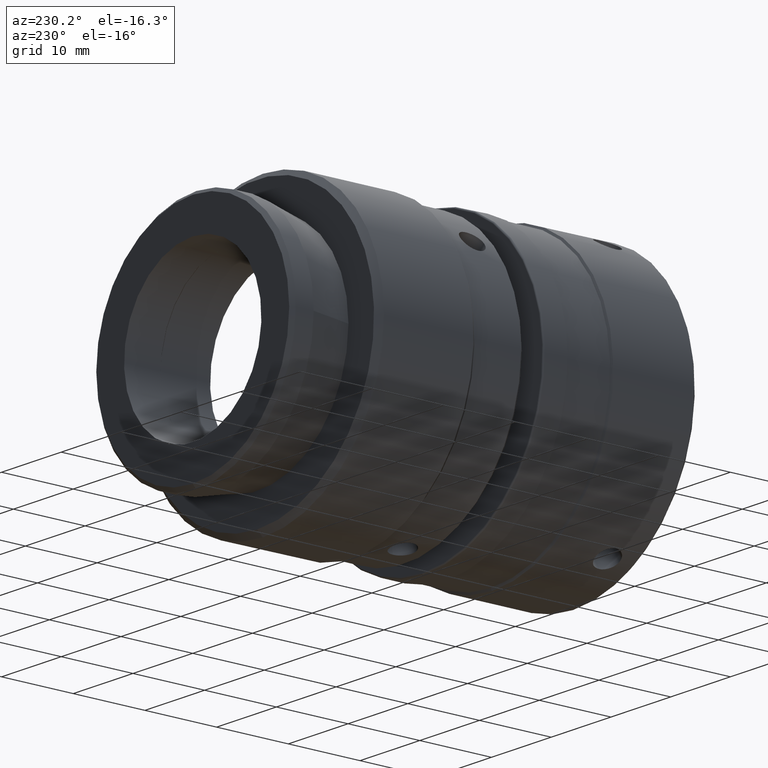
[diagram: clean part render]
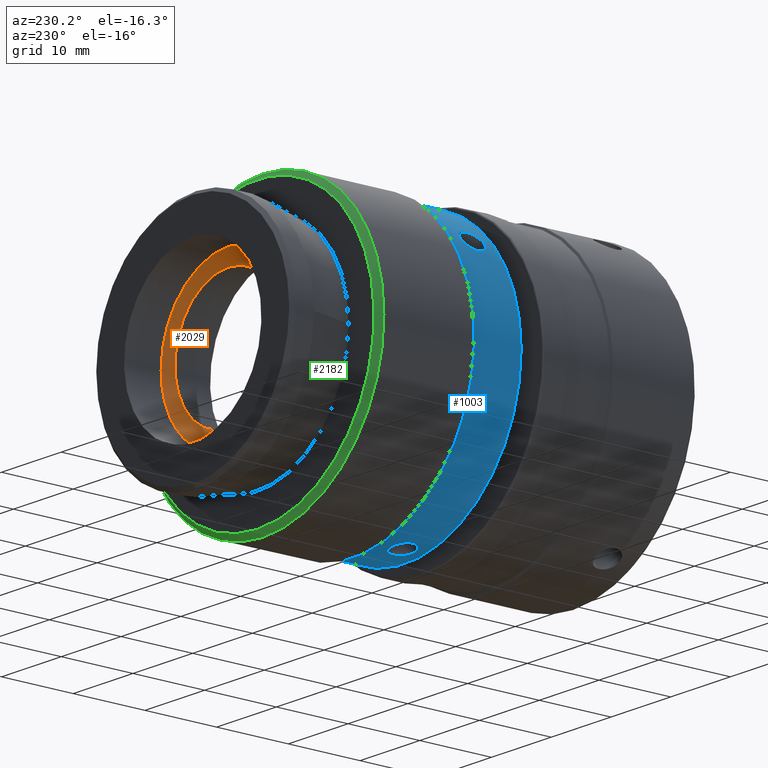
[diagram: same view with three faces highlighted in distinct colors, each labeled with its STEP entity id]
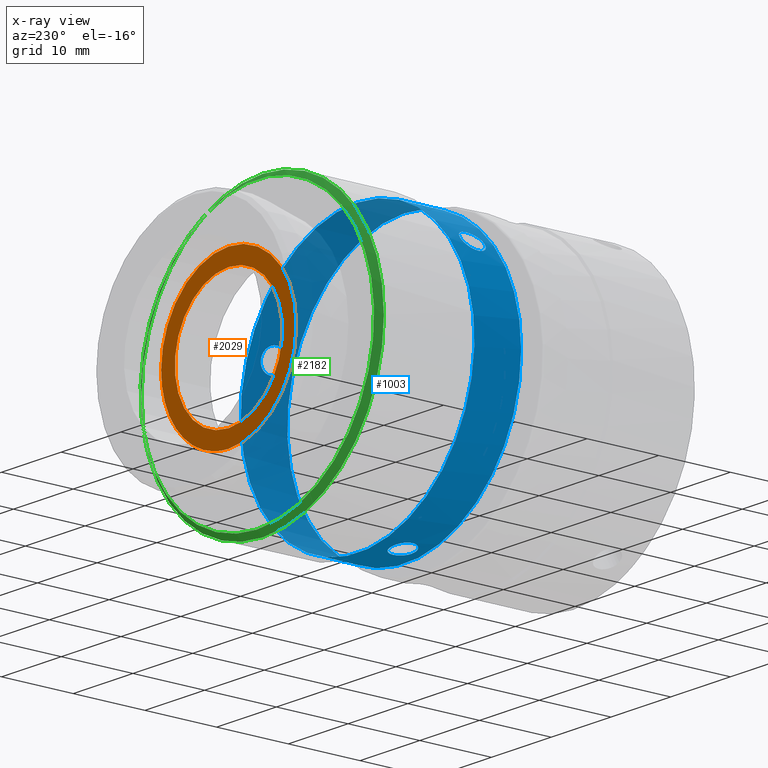
[diagram: x-ray of the same camera — body ghosted, the three highlighted faces saturated]
A machine part, auxiliary view with three faces highlighted in distinct colors.
The next image is the same camera in x-ray (body ghosted, the three faces saturated) — at least one of them is partly hidden behind the body in this view.
Their STEP definitions:

[orange] entity #2029 — the highlighted planar face has unit normal (0, 1, 0).
#8 = VERTEX_POINT ( 'NONE', #95 ) ;
#10 = CARTESIAN_POINT ( 'NONE',  ( 15.43656250745909908, 24.73982633731133873, 11.24461176566492604 ) ) ;
#20 = CARTESIAN_POINT ( 'NONE',  ( 15.89222740330257366, 24.73982575273277362, 11.18817186150956822 ) ) ;
#29 = CARTESIAN_POINT ( 'NONE',  ( 22.66277533252997145, 24.73982647979999072, 7.603798976327655446 ) ) ;
#38 = CARTESIAN_POINT ( 'NONE',  ( 16.66068784959392701, 24.73982625650781131, 11.05152816889913758 ) ) ;
#49 = CARTESIAN_POINT ( 'NONE',  ( 25.31248931209880837, 24.73982649842291437, 2.554554391560033721 ) ) ;
#61 = CARTESIAN_POINT ( 'NONE',  ( 24.80446110320795583, 24.73982635273180719, 4.172073375280472618 ) ) ;
#73 = CARTESIAN_POINT ( 'NONE',  ( 24.87778807499134714, 24.73982625123004908, 3.984189678480833052 ) ) ;
#84 = AXIS2_PLACEMENT_3D ( 'NONE', #1769, #129, #2104 ) ;
#86 = CARTESIAN_POINT ( 'NONE',  ( 25.56485751250502503, 24.73982633453590552, 0.9258153019100744396 ) ) ;
#95 = CARTESIAN_POINT ( 'NONE',  ( 14.30252365930601144, 24.73982649842291437, -11.30000000000014282 ) ) ;
#98 = CARTESIAN_POINT ( 'NONE',  ( 25.04129458621358140, 24.73982641354781364, 3.517658641241204531 ) ) ;
#129 = DIRECTION ( 'NONE',  ( 0.000000000000000000, 1.000000000000000000, 0.000000000000000000 ) ) ;
#136 = CARTESIAN_POINT ( 'NONE',  ( 14.30252365930601144, 24.73982649842291437, -11.30000000000014282 ) ) ;
#186 = CARTESIAN_POINT ( 'NONE',  ( 16.43857005108903735, 24.73982605009276980, 11.09679440633403225 ) ) ;
#194 = CARTESIAN_POINT ( 'NONE',  ( 15.78471545297173151, 24.73982593898453786, 11.20293575171610811 ) ) ;
#195 = CARTESIAN_POINT ( 'NONE',  ( 14.30252365930601144, 24.73982649842272608, -6.938893903907228378E-15 ) ) ;
#202 = CARTESIAN_POINT ( 'NONE',  ( 22.13583878337880506, 24.73982649858260885, 8.146674637561394761 ) ) ;
#203 = CARTESIAN_POINT ( 'NONE',  ( 14.30252365930601322, 24.73982649842292858, 11.30000000000012861 ) ) ;
#214 = CARTESIAN_POINT ( 'NONE',  ( 22.27699953592750148, 24.73982649825307334, 8.008572791078513831 ) ) ;
#224 = CARTESIAN_POINT ( 'NONE',  ( 17.45882097091061524, 24.73982649842255555, 10.85024368211522905 ) ) ;
#235 = CARTESIAN_POINT ( 'NONE',  ( 24.24814591926731566, 24.73982649828499447, 5.364278980198169400 ) ) ;
#248 = CARTESIAN_POINT ( 'NONE',  ( 25.55496207180673451, 24.73982628515610926, 1.041764182322033383 ) ) ;
#261 = CARTESIAN_POINT ( 'NONE',  ( 23.84904399031152877, 24.73982647161124504, 6.049884894832243454 ) ) ;
#276 = CARTESIAN_POINT ( 'NONE',  ( 25.01653570530337589, 24.73982638909519594, 3.592786163317036152 ) ) ;
#289 = CARTESIAN_POINT ( 'NONE',  ( 25.25132828674059127, 24.73982649842243475, 2.795299124750642683 ) ) ;
#309 = ORIENTED_EDGE ( 'NONE', *, *, #554, .F. ) ;
#331 = PLANE ( 'NONE',  #84 ) ;
#373 = CARTESIAN_POINT ( 'NONE',  ( 17.46398318389906024, 24.73982649842292147, 10.84874080561577081 ) ) ;
#381 = CARTESIAN_POINT ( 'NONE',  ( 19.65903039958678988, 24.73982648901837678, 9.955599275815663063 ) ) ;
#391 = CARTESIAN_POINT ( 'NONE',  ( 20.60046960930543136, 24.73982649623708596, 9.384923631277306555 ) ) ;
#393 = AXIS2_PLACEMENT_3D ( 'NONE', #1899, #1754, #1349 ) ;
#401 = CARTESIAN_POINT ( 'NONE',  ( 17.23301208603414736, 24.73982649535045297, 10.91364718770783782 ) ) ;
#411 = CARTESIAN_POINT ( 'NONE',  ( 24.62283682930298312, 24.73982649499798114, 4.603807390793942744 ) ) ;
#424 = CARTESIAN_POINT ( 'NONE',  ( 25.52058901265315072, 24.73982618078655804, 1.361874651517072543 ) ) ;
#435 = CARTESIAN_POINT ( 'NONE',  ( 24.83623377566108203, 24.73982628479641477, 4.091158762421513551 ) ) ;
#448 = CARTESIAN_POINT ( 'NONE',  ( 25.57772624636080039, 24.73982640266100930, 0.7512455757870917239 ) ) ;
#460 = CARTESIAN_POINT ( 'NONE',  ( 24.01385283860499342, 24.73982648531904971, 5.778661754143657348 ) ) ;
#473 = CARTESIAN_POINT ( 'NONE',  ( 24.17647935121426528, 24.73982640932231547, -5.690986944637735689 ) ) ;
#510 = CARTESIAN_POINT ( 'NONE',  ( 25.60145925940861744, 24.73982649801799738, 0.1626541732773733595 ) ) ;
#521 = CARTESIAN_POINT ( 'NONE',  ( 19.99351060394375068, 24.73982640932232613, -9.873955691908246735 ) ) ;
#532 = CARTESIAN_POINT ( 'NONE',  ( 22.48197780695519654, 24.73982649040454262, 7.796833700702873848 ) ) ;
#543 = CARTESIAN_POINT ( 'NONE',  ( 14.56983544864613833, 24.73982649842292147, 11.30000000000017124 ) ) ;
#551 = CARTESIAN_POINT ( 'NONE',  ( 15.88602826452499883, 24.73982576442218217, 11.18904777080813773 ) ) ;
#554 = EDGE_CURVE ( 'NONE', #8, #1544, #1394, .T. ) ;
#561 = CARTESIAN_POINT ( 'NONE',  ( 17.39919976499056631, 24.73982649842121617, 10.86744960414276306 ) ) ;
#565 = CIRCLE ( 'NONE', #1343, 9.000000000000003553 ) ;
#572 = CARTESIAN_POINT ( 'NONE',  ( 21.06557929304308274, 24.73982649841985548, 9.052691274149674783 ) ) ;
#585 = CARTESIAN_POINT ( 'NONE',  ( 25.05220384190183935, 24.73982642372432039, 3.484024447663098822 ) ) ;
#596 = CARTESIAN_POINT ( 'NONE',  ( 25.51235467062779705, 24.73982622923172059, 1.427304826695639406 ) ) ;
#607 = CARTESIAN_POINT ( 'NONE',  ( 25.36310653517425706, 24.73982650144919404, 2.325799758128411110 ) ) ;
#617 = CARTESIAN_POINT ( 'NONE',  ( 25.57539818428938716, 24.73982639020785967, 0.7860911373188042006 ) ) ;
#627 = CARTESIAN_POINT ( 'NONE',  ( 24.83816161568354985, 24.73982628010366369, 4.086198075589852152 ) ) ;
#664 = CARTESIAN_POINT ( 'NONE',  ( 15.78169020037121406, 24.73982649842289661, -11.30006981317217196 ) ) ;
#688 = CARTESIAN_POINT ( 'NONE',  ( 17.26030250965635560, 24.73982646415344533, -11.00601198814047343 ) ) ;
#693 = FACE_OUTER_BOUND ( 'NONE', #1225, .T. ) ;
#710 = CARTESIAN_POINT ( 'NONE',  ( 17.45091481278725354, 24.73982649842202974, 10.85254160496657505 ) ) ;
#730 = CARTESIAN_POINT ( 'NONE',  ( 14.30252365930601322, 24.73982649842292858, 11.30000000000012861 ) ) ;
#741 = CARTESIAN_POINT ( 'NONE',  ( 17.46214391856551629, 24.73982649842277581, 10.84927627548337625 ) ) ;
#747 = EDGE_CURVE ( 'NONE', #1544, #8, #1588, .T. ) ;
#752 = CARTESIAN_POINT ( 'NONE',  ( 25.50909290415925668, 24.73982624701932664, 1.452704299834645552 ) ) ;
#763 = CARTESIAN_POINT ( 'NONE',  ( 25.50242180783090973, 24.73982628032549869, 1.503484450997223831 ) ) ;
#774 = CARTESIAN_POINT ( 'NONE',  ( 24.37999346562787295, 24.73982649842290371, 5.117165813305788014 ) ) ;
#785 = CARTESIAN_POINT ( 'NONE',  ( 24.83172734541766502, 24.73982629548826750, 4.102730570263803500 ) ) ;
#796 = VERTEX_POINT ( 'NONE', #1163 ) ;
#797 = CARTESIAN_POINT ( 'NONE',  ( 24.09435055503713485, 24.73982649186304883, 5.641892013765988700 ) ) ;
#846 = EDGE_LOOP ( 'NONE', ( #1738 ) ) ;
#860 = CARTESIAN_POINT ( 'NONE',  ( 25.60248988734903719, 24.73982649842223935, 0.02984892813554363908 ) ) ;
#884 = CARTESIAN_POINT ( 'NONE',  ( 15.89978396712965747, 24.73982573834500087, 11.18710068502373645 ) ) ;
#892 = CARTESIAN_POINT ( 'NONE',  ( 21.02312489755459879, 24.73982649838119130, 9.084294293317036306 ) ) ;
#903 = CARTESIAN_POINT ( 'NONE',  ( 22.44881292679032470, 24.73982649197345651, 7.831446963037473452 ) ) ;
#912 = CARTESIAN_POINT ( 'NONE',  ( 22.55462114213883495, 24.73982648637831971, 7.719926187264654516 ) ) ;
#913 = DIRECTION ( 'NONE',  ( -0.000000000000000000, -1.000000000000000000, -0.000000000000000000 ) ) ;
#922 = CARTESIAN_POINT ( 'NONE',  ( 21.07265334062374507, 24.73982649842291437, 9.047403669910126567 ) ) ;
#933 = CARTESIAN_POINT ( 'NONE',  ( 25.42833060921264732, 24.73982645856595752, 1.980669495032635563 ) ) ;
#946 = CARTESIAN_POINT ( 'NONE',  ( 24.84055747796483971, 24.73982627418883951, 4.080025980781556427 ) ) ;
#958 = CARTESIAN_POINT ( 'NONE',  ( 25.11691256338449918, 24.73982648023369180, 3.281507481746103405 ) ) ;
#970 = CARTESIAN_POINT ( 'NONE',  ( 25.57926084667334266, 24.73982641085449075, 0.7277144286990917532 ) ) ;
#983 = CARTESIAN_POINT ( 'NONE',  ( 25.60251160432324724, 24.73982649842242054, 0.01674943380799585532 ) ) ;
#995 = CARTESIAN_POINT ( 'NONE',  ( 25.58011096122330841, 24.73982641538271210, 0.7143228513359259901 ) ) ;
#1004 = ORIENTED_EDGE ( 'NONE', *, *, #747, .F. ) ;
#1008 = CARTESIAN_POINT ( 'NONE',  ( 25.60215760889557757, 24.73982649840300851, 0.09429025195811316373 ) ) ;
#1060 = CARTESIAN_POINT ( 'NONE',  ( 15.94582808983721911, 24.73982564996591549, 11.18055602329076059 ) ) ;
#1070 = CARTESIAN_POINT ( 'NONE',  ( 18.75013335389173008, 24.73982648901837322, 10.41004779866319474 ) ) ;
#1091 = CARTESIAN_POINT ( 'NONE',  ( 20.96347775129590829, 24.73982649826054825, 9.128254143992988290 ) ) ;
#1101 = CARTESIAN_POINT ( 'NONE',  ( 20.84344476992916029, 24.73982649780871412, 9.215165749477588264 ) ) ;
#1111 = CARTESIAN_POINT ( 'NONE',  ( 23.11514644808272934, 24.73982645062640628, 7.085898433461387036 ) ) ;
#1124 = CARTESIAN_POINT ( 'NONE',  ( 25.15584794901239363, 24.73982649084861762, 3.147965351215344931 ) ) ;
#1137 = CARTESIAN_POINT ( 'NONE',  ( 25.25284937569556121, 24.73982649842270476, 2.789330407366241715 ) ) ;
#1150 = CARTESIAN_POINT ( 'NONE',  ( 25.51511137359810277, 24.73982621336495313, 1.405528954381747075 ) ) ;
#1163 = CARTESIAN_POINT ( 'NONE',  ( 14.30252365930601144, 24.73982649842272608, -9.000000000000008882 ) ) ;
#1165 = CARTESIAN_POINT ( 'NONE',  ( 24.82268194889444501, 24.73982631586149239, 4.125861643194472350 ) ) ;
#1225 = EDGE_LOOP ( 'NONE', ( #1004, #309 ) ) ;
#1239 = CARTESIAN_POINT ( 'NONE',  ( 15.89635999588403337, 24.73982574489372510, 11.18758678352760150 ) ) ;
#1248 = CARTESIAN_POINT ( 'NONE',  ( 15.23691867106234454, 24.73982641910645341, 11.26227838157938699 ) ) ;
#1268 = CARTESIAN_POINT ( 'NONE',  ( 17.43449171984709167, 24.73982649842210080, 10.85729887291132556 ) ) ;
#1279 = CARTESIAN_POINT ( 'NONE',  ( 15.66879640043715050, 24.73982610366870105, 11.21785036948148040 ) ) ;
#1289 = CARTESIAN_POINT ( 'NONE',  ( 24.18487215416454816, 24.73982649663990330, 5.480395244482239470 ) ) ;
#1299 = CARTESIAN_POINT ( 'NONE',  ( 25.51465419302388682, 24.73982621604592325, 1.409158548518351539 ) ) ;
#1310 = CARTESIAN_POINT ( 'NONE',  ( 25.51396710409241919, 24.73982622004606924, 1.414602776363463210 ) ) ;
#1323 = CARTESIAN_POINT ( 'NONE',  ( 24.76749993894060609, 24.73982641225277135, 4.264293244347570067 ) ) ;
#1335 = CARTESIAN_POINT ( 'NONE',  ( 25.23189992883168742, 24.73982649841162029, 2.870419137416751365 ) ) ;
#1343 = AXIS2_PLACEMENT_3D ( 'NONE', #195, #913, #1639 ) ;
#1349 = DIRECTION ( 'NONE',  ( 1.000000000000000000, 0.000000000000000000, 0.000000000000000000 ) ) ;
#1394 = CIRCLE ( 'NONE', #393, 11.30000000000018368 ) ;
#1413 = CARTESIAN_POINT ( 'NONE',  ( 21.04860820867497395, 24.73982649840788639, 9.065346793673064951 ) ) ;
#1423 = CARTESIAN_POINT ( 'NONE',  ( 16.23167133409898355, 24.73982583872221852, 11.13483051753798492 ) ) ;
#1432 = CARTESIAN_POINT ( 'NONE',  ( 17.46434468614305047, 24.73982649842288595, 10.84863522156404514 ) ) ;
#1441 = CARTESIAN_POINT ( 'NONE',  ( 15.87156186458818574, 24.73982579121706848, 11.19107960442615735 ) ) ;
#1450 = CARTESIAN_POINT ( 'NONE',  ( 15.84262214595687190, 24.73982584291545095, 11.19509544453015337 ) ) ;
#1464 = CARTESIAN_POINT ( 'NONE',  ( 24.48085048893052473, 24.73982650236996506, 4.913508654527860564 ) ) ;
#1474 = CARTESIAN_POINT ( 'NONE',  ( 24.99660983716255203, 24.73982636791895118, 3.651464069149112923 ) ) ;
#1484 = CARTESIAN_POINT ( 'NONE',  ( 24.85172956451853565, 24.73982624629396199, 4.051218269782749459 ) ) ;
#1486 = EDGE_CURVE ( 'NONE', #796, #796, #565, .T. ) ;
#1496 = CARTESIAN_POINT ( 'NONE',  ( 25.48848964659113392, 24.73982633837684375, 1.604967293581134102 ) ) ;
#1509 = CARTESIAN_POINT ( 'NONE',  ( 25.06384836388440007, 24.73982643423619621, 3.447842545219740096 ) ) ;
#1534 = CARTESIAN_POINT ( 'NONE',  ( 25.59644441427307626, 24.73982648847724164, 0.3907735807606264045 ) ) ;
#1544 = VERTEX_POINT ( 'NONE', #203 ) ;
#1573 = CARTESIAN_POINT ( 'NONE',  ( 25.60252115412290053, 24.73982649842266568, 0.008221167766914446590 ) ) ;
#1578 = FACE_BOUND ( 'NONE', #846, .T. ) ;
#1588 = B_SPLINE_CURVE_WITH_KNOTS ( 'NONE', 3,
 ( #730, #543, #1988, #1248, #10, #1279, #194, #1450, #1441, #551, #20, #1239, #884, #1060, #2149, #1423, #1814, #186, #1609, #2160, #1804, #38, #2139, #1776, #1598, #401, #2132, #1966, #561, #1268, #710, #224, #741, #1432, #373, #1976, #1070, #381, #1617, #1785, #391, #1101, #1091, #892, #1413, #572, #922, #2123, #1793, #202, #214, #903, #532, #912, #29, #1626, #1111, #2193, #1825, #261, #460, #797, #1289, #2022, #235, #2183, #774, #1464, #411, #1664, #1323, #61, #1165, #785, #435, #627, #2170, #946, #1484, #73, #1859, #1873, #1474, #276, #98, #585, #1688, #1509, #958, #1124, #1998, #2035, #1335, #2047, #2218, #289, #1137, #1676, #1637, #49, #607, #933, #1651, #1496, #763, #752, #596, #1310, #1299, #1150, #2009, #424, #1849, #1838, #248, #86, #2206, #617, #448, #970, #995, #1752, #1534, #2255, #510, #1008, #1911, #860, #983, #1573, #2061, #2110, #2098, #473, #1701, #2281, #521, #688, #664, #136 ),
 .UNSPECIFIED., .F., .F.,
 ( 4, 2, 1, 1, 1, 1, 1, 1, 2, 2, 2, 2, 1, 1, 2, 2, 2, 2, 1, 1, 1, 1, 2, 2, 2, 2, 1, 1, 1, 1, 2, 2, 2, 2, 2, 1, 2, 2, 2, 1, 1, 2, 2, 2, 1, 1, 1, 1, 1, 1, 2, 2, 2, 2, 1, 1, 2, 2, 2, 2, 1, 1, 1, 2, 2, 2, 1, 1, 1, 1, 1, 1, 2, 2, 2, 2, 1, 1, 2, 2, 2, 2, 1, 1, 2, 2, 2, 2, 2, 4 ),
 ( 0.000000000000000000, 0.03124999999997790656, 0.04687499999996685984, 0.05468749999996133648, 0.05859374999995838745, 0.06054687499995672212, 0.06152343749995589639, 0.06201171874995548006, 0.06225585937495547312, 0.06249999999995546618, 0.07812499999992966737, 0.08593749999991677491, 0.08984374999991047439, 0.09179687499990733801, 0.09277343749990564492, 0.09374999999990395183, 0.1093749999998765571, 0.1171874999998628597, 0.1210937499998562678, 0.1230468749998529371, 0.1240234374998513134, 0.1245117187498507860, 0.1247558593748504668, 0.1249999999998501615, 0.1874999999997642164, 0.2187499999997210565, 0.2343749999996994349, 0.2421874999996887490, 0.2460937499996835587, 0.2480468749996810052, 0.2490234374996798394, 0.2499999999996786737, 0.2812499999996444511, 0.2968749999996273536, 0.3007812499996231903, 0.3046874999996190825, 0.3124999999996107003, 0.3437499999995773936, 0.3593749999995607403, 0.3671874999995525246, 0.3710937499995483613, 0.3730468749995462518, 0.3749999999995441424, 0.3906249999995271560, 0.3984374999995186628, 0.4023437499995143884, 0.4042968749995122790, 0.4052734374995111688, 0.4057617187495106137, 0.4060058593745103361, 0.4061279296870102251, 0.4062499999995100586, 0.4140624999995138888, 0.4179687499995157762, 0.4199218749995166644, 0.4208984374995170530, 0.4213867187495172750, 0.4218749999995174971, 0.4296874999995207722, 0.4335937499995223265, 0.4355468749995230482, 0.4365234374995234368, 0.4370117187495236588, 0.4372558593745237698, 0.4374999999995238809, 0.4531249999995288213, 0.4609374999995313194, 0.4648437499995325406, 0.4667968749995331512, 0.4677734374995334288, 0.4682617187495335953, 0.4685058593745336508, 0.4686279296870337063, 0.4687499999995337063, 0.4765624999995404232, 0.4804687499995437538, 0.4824218749995454192, 0.4833984374995462518, 0.4838867187495466959, 0.4843749999995471400, 0.4921874999995540234, 0.4960937499995574651, 0.4980468749995591859, 0.4990234374995600186, 0.4995117187495604627, 0.4999999999995609068, 0.6249999999996707079, 0.7499999999997805089, 0.8749999999998903100, 1.000000000000000000 ),
 .UNSPECIFIED. ) ;
#1598 = CARTESIAN_POINT ( 'NONE',  ( 17.03862732748292075, 24.73982647026753412, 10.96468576936665684 ) ) ;
#1609 = CARTESIAN_POINT ( 'NONE',  ( 16.50776524751754337, 24.73982611961385913, 11.08332641904947913 ) ) ;
#1617 = CARTESIAN_POINT ( 'NONE',  ( 19.95517768916593582, 24.73982649078172358, 9.790480478217764571 ) ) ;
#1626 = CARTESIAN_POINT ( 'NONE',  ( 22.76846479821277924, 24.73982647260240952, 7.485408230519274397 ) ) ;
#1637 = CARTESIAN_POINT ( 'NONE',  ( 25.25393044598130743, 24.73982649842291082, 2.785085087631916423 ) ) ;
#1639 = DIRECTION ( 'NONE',  ( 0.000000000000000000, 0.000000000000000000, -1.000000000000000000 ) ) ;
#1651 = CARTESIAN_POINT ( 'NONE',  ( 25.45826783917491909, 24.73982642416842026, 1.807604919917752850 ) ) ;
#1664 = CARTESIAN_POINT ( 'NONE',  ( 24.69150570980070825, 24.73982648401482010, 4.447903116030322401 ) ) ;
#1676 = CARTESIAN_POINT ( 'NONE',  ( 25.25385024036375725, 24.73982649842285397, 2.785398786422073503 ) ) ;
#1688 = CARTESIAN_POINT ( 'NONE',  ( 25.05954003836625432, 24.73982643041253837, 3.461281562882820406 ) ) ;
#1701 = CARTESIAN_POINT ( 'NONE',  ( 23.33892646021137551, 24.73982638876064755, -6.944506646060712107 ) ) ;
#1738 = ORIENTED_EDGE ( 'NONE', *, *, #1486, .F. ) ;
#1752 = CARTESIAN_POINT ( 'NONE',  ( 25.59127859127647753, 24.73982647463896001, 0.5342799115456565717 ) ) ;
#1754 = DIRECTION ( 'NONE',  ( -1.508455196501572908E-16, 1.000000000000000000, 2.275437079852600966E-32 ) ) ;
#1769 = CARTESIAN_POINT ( 'NONE',  ( 25.60252365930619334, 24.73982649842282200, -6.938893903907228378E-15 ) ) ;
#1776 = CARTESIAN_POINT ( 'NONE',  ( 16.87865203192623298, 24.73982643153510708, 11.00437121068713786 ) ) ;
#1785 = CARTESIAN_POINT ( 'NONE',  ( 20.38737527041745778, 24.73982649430843139, 9.523349657647695921 ) ) ;
#1793 = CARTESIAN_POINT ( 'NONE',  ( 21.70180578785592118, 24.73982649800772293, 8.549616717561990598 ) ) ;
#1804 = CARTESIAN_POINT ( 'NONE',  ( 16.63436146297163276, 24.73982623424530303, 11.05712720240319236 ) ) ;
#1814 = CARTESIAN_POINT ( 'NONE',  ( 16.30809574763427605, 24.73982591767869366, 11.12144084362179619 ) ) ;
#1825 = CARTESIAN_POINT ( 'NONE',  ( 23.73408588372845074, 24.73982646186877332, 6.227611222961868975 ) ) ;
#1838 = CARTESIAN_POINT ( 'NONE',  ( 25.54839242522557541, 24.73982625541835745, 1.109461128091885795 ) ) ;
#1849 = CARTESIAN_POINT ( 'NONE',  ( 25.53031661671187180, 24.73982618996560845, 1.283857287507031542 ) ) ;
#1859 = CARTESIAN_POINT ( 'NONE',  ( 24.93612018494690474, 24.73982630332362476, 3.824416119747899412 ) ) ;
#1873 = CARTESIAN_POINT ( 'NONE',  ( 24.95873124942982457, 24.73982632751179978, 3.761272050672523903 ) ) ;
#1899 = CARTESIAN_POINT ( 'NONE',  ( 14.30252365930601144, 24.73982649842292858, -6.938893903907228378E-15 ) ) ;
#1911 = CARTESIAN_POINT ( 'NONE',  ( 25.60237999524467867, 24.73982649842314530, 0.06256400956458388340 ) ) ;
#1966 = CARTESIAN_POINT ( 'NONE',  ( 17.36474730047551418, 24.73982649834253422, 10.87720701708245663 ) ) ;
#1976 = CARTESIAN_POINT ( 'NONE',  ( 18.11688536349996426, 24.73982649842291792, 10.65835376240897325 ) ) ;
#1988 = CARTESIAN_POINT ( 'NONE',  ( 14.83709646754838651, 24.73982651428620017, 11.29055687758125615 ) ) ;
#1998 = CARTESIAN_POINT ( 'NONE',  ( 25.20171897180600240, 24.73982649766958986, 2.983499928107411492 ) ) ;
#2009 = CARTESIAN_POINT ( 'NONE',  ( 25.51548877081787481, 24.73982621112946489, 1.402524580622169115 ) ) ;
#2022 = CARTESIAN_POINT ( 'NONE',  ( 24.22293447588271675, 24.73982649777040876, 5.410778626116290013 ) ) ;
#2029 = ADVANCED_FACE ( 'NONE', ( #1578, #693 ), #331, .F. ) ;
#2035 = CARTESIAN_POINT ( 'NONE',  ( 25.21490646921018097, 24.73982649812911561, 2.934644939188921775 ) ) ;
#2047 = CARTESIAN_POINT ( 'NONE',  ( 25.23969832190015339, 24.73982649842330517, 2.840569856265772852 ) ) ;
#2061 = CARTESIAN_POINT ( 'NONE',  ( 25.60252338659850579, 24.73982649842291437, 0.005777994301022183581 ) ) ;
#2098 = CARTESIAN_POINT ( 'NONE',  ( 25.30853564744649020, 24.73982646415345954, -2.957778850350347266 ) ) ;
#2104 = DIRECTION ( 'NONE',  ( 0.000000000000000000, -0.000000000000000000, 1.000000000000000000 ) ) ;
#2110 = CARTESIAN_POINT ( 'NONE',  ( 25.60259347247818695, 24.73982649842291437, -1.479166541065203067 ) ) ;
#2123 = CARTESIAN_POINT ( 'NONE',  ( 21.39837385714222862, 24.73982649842291082, 8.803082562880717887 ) ) ;
#2132 = CARTESIAN_POINT ( 'NONE',  ( 17.29021087509476118, 24.73982649719037497, 10.89802503525827149 ) ) ;
#2139 = CARTESIAN_POINT ( 'NONE',  ( 16.67555317721287622, 24.73982626873650759, 11.04833617399308388 ) ) ;
#2149 = CARTESIAN_POINT ( 'NONE',  ( 16.03447942852087849, 24.73982566795696769, 11.16786271409344167 ) ) ;
#2160 = CARTESIAN_POINT ( 'NONE',  ( 16.59535828285296688, 24.73982620043967984, 11.06534839005995430 ) ) ;
#2170 = CARTESIAN_POINT ( 'NONE',  ( 24.83944606729099647, 24.73982627695034253, 4.082890653482832199 ) ) ;
#2183 = CARTESIAN_POINT ( 'NONE',  ( 24.25975169822185151, 24.73982649842290726, 5.342707214513326974 ) ) ;
#2193 = CARTESIAN_POINT ( 'NONE',  ( 23.37450019893717013, 24.73982644394507702, 6.750679302865058240 ) ) ;
#2206 = CARTESIAN_POINT ( 'NONE',  ( 25.56981203695838545, 24.73982636035404781, 0.8642400775415189917 ) ) ;
#2218 = CARTESIAN_POINT ( 'NONE',  ( 25.24763971670013873, 24.73982649842215409, 2.809724918910120994 ) ) ;
#2255 = CARTESIAN_POINT ( 'NONE',  ( 25.60065985072563421, 24.73982649739622275, 0.2147792657989222032 ) ) ;
#2281 = CARTESIAN_POINT ( 'NONE',  ( 21.24703030536672443, 24.73982638876064755, -9.036402800905360522 ) ) ;

[blue] entity #1003 — the highlighted cylindrical surface (bore or boss wall) has radius 19.57 mm, axis along (0, 1, 0).
#2 = CARTESIAN_POINT ( 'NONE',  ( 10.11845233427392721, 4.671797027492382348, -19.11770002448661643 ) ) ;
#27 = ORIENTED_EDGE ( 'NONE', *, *, #31, .F. ) ;
#31 = EDGE_CURVE ( 'NONE', #1802, #1802, #284, .T. ) ;
#41 = FACE_BOUND ( 'NONE', #1033, .T. ) ;
#64 = CARTESIAN_POINT ( 'NONE',  ( 0.2535899220957029687, 2.413313797950831674, 13.62409488054747619 ) ) ;
#76 = CARTESIAN_POINT ( 'NONE',  ( 33.17309763478007056, 3.672375626147274197, 5.185870601317501105 ) ) ;
#77 = CARTESIAN_POINT ( 'NONE',  ( -1.711155540698512389, 3.348874413743406997, 11.24931013348563980 ) ) ;
#85 = VERTEX_POINT ( 'NONE', #1885 ) ;
#90 = CARTESIAN_POINT ( 'NONE',  ( -0.7740259871416720339, 1.589751729911536904, 12.47774573246924490 ) ) ;
#101 = CARTESIAN_POINT ( 'NONE',  ( -0.9766611192468082070, 1.642517118792497843, 12.22876173588852211 ) ) ;
#114 = CARTESIAN_POINT ( 'NONE',  ( -1.473069104751304703, 4.330510878701337774, 11.58107852752329947 ) ) ;
#127 = CARTESIAN_POINT ( 'NONE',  ( 9.479162811985483827, 3.972099008897870043, -18.96633383526974015 ) ) ;
#138 = AXIS2_PLACEMENT_3D ( 'NONE', #1655, #925, #716 ) ;
#140 = CARTESIAN_POINT ( 'NONE',  ( 12.48285631170207566, 3.771813408853725846, -19.48526201998598495 ) ) ;
#162 = CARTESIAN_POINT ( 'NONE',  ( 32.06988393860469699, 2.807274231307749002, 8.204433240908855396 ) ) ;
#163 = CARTESIAN_POINT ( 'NONE',  ( 12.00761503434396005, 1.995336566646515708, -19.43512937659204098 ) ) ;
#176 = CARTESIAN_POINT ( 'NONE',  ( 32.64684326881111076, 1.589751729911547562, 6.817802129006285128 ) ) ;
#237 = CARTESIAN_POINT ( 'NONE',  ( 32.14258999354866120, 4.066336944209252735, 8.044907311494990054 ) ) ;
#251 = CARTESIAN_POINT ( 'NONE',  ( 32.82601918212311887, 4.837135719441450377, 6.314761653344897141 ) ) ;
#252 = CARTESIAN_POINT ( 'NONE',  ( -1.223014498802247330, 1.807855322825348221, 11.91430115306575388 ) ) ;
#260 = VERTEX_POINT ( 'NONE', #651 ) ;
#264 = CARTESIAN_POINT ( 'NONE',  ( -1.704987071696864032, 3.456090527483762109, 11.25810564798781854 ) ) ;
#278 = CARTESIAN_POINT ( 'NONE',  ( 32.21982824939236423, 4.330510878701328892, 7.871524829669868772 ) ) ;
#279 = CARTESIAN_POINT ( 'NONE',  ( -1.331317359912411069, 1.927198745619647102, 11.77182747285326769 ) ) ;
#284 = CIRCLE ( 'NONE', #324, 19.57000000000000384 ) ;
#291 = CARTESIAN_POINT ( 'NONE',  ( 32.12159565874602407, 3.971591736560017072, 8.091186459488966420 ) ) ;
#292 = CARTESIAN_POINT ( 'NONE',  ( -1.614185361088154247, 3.971591736560019736, 11.38617579363445564 ) ) ;
#297 = EDGE_LOOP ( 'NONE', ( #1235 ) ) ;
#303 = CARTESIAN_POINT ( 'NONE',  ( 0.3471631028852816270, 2.707836613534292169, 13.71985921912763295 ) ) ;
#316 = CARTESIAN_POINT ( 'NONE',  ( 11.65140470148135066, 1.756237589065756888, -19.38985456833056986 ) ) ;
#324 = AXIS2_PLACEMENT_3D ( 'NONE', #843, #1907, #1407 ) ;
#329 = CARTESIAN_POINT ( 'NONE',  ( 9.712257418030180389, 4.330407659684614607, -19.02420340834872903 ) ) ;
#342 = CARTESIAN_POINT ( 'NONE',  ( 12.16101538078114963, 2.149243711056559647, -19.45262968790608582 ) ) ;
#353 = CARTESIAN_POINT ( 'NONE',  ( 11.35169772847596015, 1.642517118792504061, -19.34654303528753871 ) ) ;
#364 = AXIS2_PLACEMENT_3D ( 'NONE', #1467, #1074, #757 ) ;
#365 = CARTESIAN_POINT ( 'NONE',  ( 11.14306327376459294, 4.889675754269385166, -19.31447802651386780 ) ) ;
#377 = EDGE_CURVE ( 'NONE', #957, #957, #1093, .T. ) ;
#414 = CARTESIAN_POINT ( 'NONE',  ( 33.00750350867924254, 1.920947289657460200, 5.756027839409274094 ) ) ;
#426 = CARTESIAN_POINT ( 'NONE',  ( 32.19158729837950261, 4.245647549212464789, 7.935357747316872157 ) ) ;
#427 = CARTESIAN_POINT ( 'NONE',  ( -1.164023493641628049, 1.756237589065751781, 11.99086365009602595 ) ) ;
#450 = CARTESIAN_POINT ( 'NONE',  ( 32.05155160995659003, 3.239826498423053369, 8.243597928515477236 ) ) ;
#451 = CARTESIAN_POINT ( 'NONE',  ( 12.56717490866008369, 3.239826498423053369, -19.49290806200121295 ) ) ;
#462 = CARTESIAN_POINT ( 'NONE',  ( 32.60908248387413977, 4.889675754269382502, 6.921066057127325699 ) ) ;
#463 = CARTESIAN_POINT ( 'NONE',  ( -1.583851977890500917, 2.411142035566319564, 11.42854146969864892 ) ) ;
#477 = CARTESIAN_POINT ( 'NONE',  ( -0.4279681127431022025, 4.837135719441461035, 12.88443686297442348 ) ) ;
#484 = CARTESIAN_POINT ( 'NONE',  ( 12.56717490866008013, 3.239826498423053369, -19.49290806200121295 ) ) ;
#487 = CARTESIAN_POINT ( 'NONE',  ( 32.60845219926144267, 1.600450920054177217, 6.920193738641739145 ) ) ;
#488 = CARTESIAN_POINT ( 'NONE',  ( 11.93367467038322616, 4.558704743737272302, -19.42670023807012925 ) ) ;
#512 = CARTESIAN_POINT ( 'NONE',  ( 32.28129373775301758, 1.995336566646519483, 7.730115519714709116 ) ) ;
#513 = CARTESIAN_POINT ( 'NONE',  ( 11.45346941122260453, 1.673649969333403265, -19.36176081354753364 ) ) ;
#534 = CARTESIAN_POINT ( 'NONE',  ( 11.03475369624870517, 1.589751729911543565, -19.29554786147563306 ) ) ;
#577 = FACE_OUTER_BOUND ( 'NONE', #1934, .T. ) ;
#600 = CARTESIAN_POINT ( 'NONE',  ( -1.514229557524854108, 4.245647549212467453, 11.52470468769562473 ) ) ;
#609 = CARTESIAN_POINT ( 'NONE',  ( 33.12580279803481886, 2.413313797950837891, 5.354686072234567717 ) ) ;
#610 = CARTESIAN_POINT ( 'NONE',  ( 0.01624897472166082768, 4.484315253803527135, 13.37509682673842271 ) ) ;
#629 = CARTESIAN_POINT ( 'NONE',  ( 33.18433980058031096, 3.457917937000020814, 5.144115007181955690 ) ) ;
#630 = CARTESIAN_POINT ( 'NONE',  ( -1.513564347090234907, 2.232574675146137277, 11.52561717152974552 ) ) ;
#643 = CARTESIAN_POINT ( 'NONE',  ( -1.711155540698512612, 3.239826498423053369, 11.24931013348563624 ) ) ;
#651 = CARTESIAN_POINT ( 'NONE',  ( 14.30252365930601322, 0.2398264984230461527, 19.57000000000000384 ) ) ;
#655 = CARTESIAN_POINT ( 'NONE',  ( 32.82867375620607220, 1.633384941619094866, 6.309207707836202772 ) ) ;
#656 = CARTESIAN_POINT ( 'NONE',  ( 9.943802582124568801, 4.552453267907415224, -19.07863877876367908 ) ) ;
#666 = CARTESIAN_POINT ( 'NONE',  ( 32.53253436868899939, 1.642517118792506947, 7.117781299398910910 ) ) ;
#667 = CARTESIAN_POINT ( 'NONE',  ( 9.934900068438450305, 1.920947289657455981, -19.07700164653790154 ) ) ;
#678 = CARTESIAN_POINT ( 'NONE',  ( 9.644649216277279891, 2.234003620999665873, -19.00770123238646292 ) ) ;
#691 = CARTESIAN_POINT ( 'NONE',  ( 9.326937144695273574, 3.023558911099081481, -18.92693534167644742 ) ) ;
#702 = CARTESIAN_POINT ( 'NONE',  ( 9.367641759240830979, 2.812637862227684415, -18.93758916084057375 ) ) ;
#716 = DIRECTION ( 'NONE',  ( 0.000000000000000000, 0.000000000000000000, 1.000000000000000000 ) ) ;
#740 = CARTESIAN_POINT ( 'NONE',  ( 14.30252365930601322, 6.759826498423050722, 19.57000000000000384 ) ) ;
#757 = DIRECTION ( 'NONE',  ( 0.000000000000000000, 0.000000000000000000, 1.000000000000000000 ) ) ;
#765 = CARTESIAN_POINT ( 'NONE',  ( 33.02883463163031763, 4.484315253803516477, 5.684728388923281805 ) ) ;
#766 = CARTESIAN_POINT ( 'NONE',  ( 0.3695313096179049239, 2.812637862227679086, 13.74252767055281943 ) ) ;
#776 = CARTESIAN_POINT ( 'NONE',  ( 32.85893762350492153, 4.806002776482034555, 6.217265695267657932 ) ) ;
#777 = CARTESIAN_POINT ( 'NONE',  ( -0.03483259919954008466, 1.920947289657450652, 13.32097380712853329 ) ) ;
#788 = CARTESIAN_POINT ( 'NONE',  ( -0.2268202444290702002, 4.723414906889290776, 13.11079927629372222 ) ) ;
#800 = CARTESIAN_POINT ( 'NONE',  ( 0.2526961271288157285, 4.068508701491411195, 13.62317280673348563 ) ) ;
#808 = CARTESIAN_POINT ( 'NONE',  ( 32.05155160995659003, 3.239826498423053369, 8.243597928515477236 ) ) ;
#811 = CARTESIAN_POINT ( 'NONE',  ( 33.18152373828873891, 3.023558911099081481, 5.154483350457888413 ) ) ;
#812 = CARTESIAN_POINT ( 'NONE',  ( -1.584603610661192263, 4.066336944209259840, 11.42749699490608073 ) ) ;
#825 = CARTESIAN_POINT ( 'NONE',  ( 9.358332353048979257, 3.672375626147277305, -18.93533174741284952 ) ) ;
#830 = ORIENTED_EDGE ( 'NONE', *, *, #1318, .T. ) ;
#837 = CARTESIAN_POINT ( 'NONE',  ( 32.75768074101430472, 1.589977242348981745, 6.514478360797404832 ) ) ;
#838 = CARTESIAN_POINT ( 'NONE',  ( 9.862487371566173167, 4.484315253803521806, -19.05982521566181020 ) ) ;
#843 = CARTESIAN_POINT ( 'NONE',  ( 14.30252365930601322, 6.759826498423050722, 0.000000000000000000 ) ) ;
#864 = CARTESIAN_POINT ( 'NONE',  ( 12.40016068026028861, 3.971591736560017960, -19.47736225312351266 ) ) ;
#876 = CARTESIAN_POINT ( 'NONE',  ( 12.55647353516100218, 3.456090527483760777, -19.49196376839441314 ) ) ;
#925 = DIRECTION ( 'NONE',  ( 0.000000000000000000, 1.000000000000000000, 0.000000000000000000 ) ) ;
#936 = CARTESIAN_POINT ( 'NONE',  ( 32.95097320495789006, 4.671797027492376131, 5.935337953519336018 ) ) ;
#948 = CARTESIAN_POINT ( 'NONE',  ( 32.05608451445402096, 3.456090527483762553, 8.233858120406505776 ) ) ;
#949 = CARTESIAN_POINT ( 'NONE',  ( -1.381337794178834066, 1.995336566646510823, 11.70501385687723150 ) ) ;
#957 = VERTEX_POINT ( 'NONE', #808 ) ;
#961 = CARTESIAN_POINT ( 'NONE',  ( 0.1703087460289849364, 2.234003620999661432, 13.53768821149447454 ) ) ;
#974 = CARTESIAN_POINT ( 'NONE',  ( -1.225975226857719536, 4.681627135078485935, 11.91176148839055315 ) ) ;
#985 = CARTESIAN_POINT ( 'NONE',  ( 32.31096407164141482, 4.558704743737270526, 7.661866716898692253 ) ) ;
#992 = EDGE_LOOP ( 'NONE', ( #830 ) ) ;
#998 = CARTESIAN_POINT ( 'NONE',  ( 0.2888771649664088059, 3.972099008897870043, 13.66031994303375363 ) ) ;
#1003 = ADVANCED_FACE ( 'NONE', ( #1979, #577, #41, #1991, #2001 ), #1620, .T. ) ;
#1012 = CARTESIAN_POINT ( 'NONE',  ( 9.478923061695772034, 2.508058778115997978, -18.96627276317407507 ) ) ;
#1025 = CARTESIAN_POINT ( 'NONE',  ( 12.51457001527227497, 3.667011971729882802, -19.48816472506361208 ) ) ;
#1033 = EDGE_LOOP ( 'NONE', ( #1946 ) ) ;
#1037 = CARTESIAN_POINT ( 'NONE',  ( 12.16081183327709070, 4.330510878701329780, -19.45260335719325795 ) ) ;
#1048 = CARTESIAN_POINT ( 'NONE',  ( 32.14311871886728511, 2.411142035566326669, 8.043734141024975415 ) ) ;
#1074 = DIRECTION ( 'NONE',  ( 0.000000000000000000, 1.000000000000000000, 0.000000000000000000 ) ) ;
#1090 = B_SPLINE_CURVE_WITH_KNOTS ( 'NONE', 3,
 ( #643, #77, #264, #1889, #2197, #292, #812, #600, #114, #2235, #974, #1852, #2186, #2051, #2065, #477, #1524, #788, #1129, #1704, #610, #1326, #1500, #800, #998, #1153, #1350, #1841, #1182, #766, #303, #1864, #64, #961, #1477, #777, #1303, #2013, #1679, #90, #1169, #101, #2025, #427, #252, #279, #949, #1667, #630, #463, #1512, #2209, #1488, #1692 ),
 .UNSPECIFIED., .T., .F.,
 ( 4, 2, 2, 2, 2, 2, 2, 2, 2, 2, 2, 2, 2, 2, 2, 2, 2, 2, 2, 2, 2, 2, 2, 2, 2, 2, 4 ),
 ( 0.000000000000000000, 0.0003224892143156463608, 0.0006449784286312927216, 0.0009674676429469379439, 0.001289956857262583275, 0.001934935285893876322, 0.002579913714525169151, 0.002902402928840813832, 0.003224892143156458078, 0.003547381357472103192, 0.003869870571787747873, 0.004192359786103392987, 0.004514849000419036799, 0.005159827429050322690, 0.005482316643365964769, 0.005804805857681608582, 0.006127295071997251527, 0.006449784286312893605, 0.007094762714944177762, 0.007739741143575461051, 0.008062230357891102261, 0.008384719572206746074, 0.008707208786522386418, 0.009029698000838028496, 0.009352187215153670574, 0.009674676429469312652, 0.01031965485810059681 ),
 .UNSPECIFIED. ) ;
#1093 = B_SPLINE_CURVE_WITH_KNOTS ( 'NONE', 3,
 ( #450, #2000, #948, #2050, #1827, #291, #237, #426, #278, #985, #2024, #1128, #462, #1678, #1499, #251, #776, #1511, #936, #1167, #765, #2220, #2208, #2185, #2037, #76, #629, #1337, #811, #1523, #1487, #2196, #609, #2234, #1139, #414, #1113, #655, #837, #176, #487, #666, #1715, #2246, #1205, #2270, #512, #1765, #1192, #1048, #2087, #162, #1742, #1913 ),
 .UNSPECIFIED., .T., .F.,
 ( 4, 2, 2, 2, 2, 2, 2, 2, 2, 2, 2, 2, 2, 2, 2, 2, 2, 2, 2, 2, 2, 2, 2, 2, 2, 2, 4 ),
 ( 0.000000000000000000, 0.0003224892143156389882, 0.0006449784286312779764, 0.0009674676429469169104, 0.001289956857262555953, 0.001934935285893837724, 0.002579913714525119712, 0.002902402928840763091, 0.003224892143156406904, 0.003547381357472050283, 0.003869870571787694096, 0.004192359786103337475, 0.004514849000418981288, 0.005159827429050265445, 0.005482316643365908390, 0.005804805857681550468, 0.006127295071997193414, 0.006449784286312835492, 0.007094762714944123985, 0.007739741143575411611, 0.008062230357891053689, 0.008384719572206697502, 0.008707208786522341315, 0.009029698000837985128, 0.009352187215153627206, 0.009674676429469269284, 0.01031965485810055691 ),
 .UNSPECIFIED. ) ;
#1113 = CARTESIAN_POINT ( 'NONE',  ( 32.95289509422762109, 1.798025244451290972, 5.931946110084758139 ) ) ;
#1121 = ORIENTED_EDGE ( 'NONE', *, *, #1148, .T. ) ;
#1128 = CARTESIAN_POINT ( 'NONE',  ( 32.53098157489264253, 4.846267923061377658, 7.123739287311118495 ) ) ;
#1129 = CARTESIAN_POINT ( 'NONE',  ( -0.1618545613136685157, 4.671797027492386789, 13.18236207096716939 ) ) ;
#1139 = CARTESIAN_POINT ( 'NONE',  ( 33.07303761075279169, 2.149140522287330324, 5.537012995462464282 ) ) ;
#1148 = EDGE_CURVE ( 'NONE', #260, #260, #1836, .T. ) ;
#1153 = CARTESIAN_POINT ( 'NONE',  ( 0.3761409900890861913, 3.672375626147276417, 13.74946114609524983 ) ) ;
#1167 = CARTESIAN_POINT ( 'NONE',  ( 33.00447004993304034, 4.552453267907409007, 5.764556208531871562 ) ) ;
#1169 = CARTESIAN_POINT ( 'NONE',  ( -0.8435041874455191380, 1.600450920054167891, 12.39330228614304730 ) ) ;
#1182 = CARTESIAN_POINT ( 'NONE',  ( 0.3991100949341394033, 3.023558911099080593, 13.77245199121846753 ) ) ;
#1192 = CARTESIAN_POINT ( 'NONE',  ( 32.19204492734310463, 2.232574675146144383, 7.934325416264567110 ) ) ;
#1193 = CARTESIAN_POINT ( 'NONE',  ( 9.316549864877371689, 3.457917937000021702, -18.92418995152161543 ) ) ;
#1205 = CARTESIAN_POINT ( 'NONE',  ( 32.38338020525335281, 1.807855322825355104, 7.488359875813453748 ) ) ;
#1206 = CARTESIAN_POINT ( 'NONE',  ( 10.11455396705905407, 1.798025244451287197, -19.11766850770015580 ) ) ;
#1211 = B_SPLINE_CURVE_WITH_KNOTS ( 'NONE', 3,
 ( #451, #1240, #876, #1025, #140, #864, #2077, #1389, #1037, #488, #2286, #1755, #365, #1576, #1716, #1375, #1590, #2247, #2, #656, #838, #329, #1949, #1938, #127, #825, #1193, #2272, #691, #702, #1743, #1012, #2124, #678, #2102, #667, #1206, #1402, #1364, #534, #1900, #353, #513, #316, #1219, #1730, #163, #342, #1928, #1538, #1551, #2259, #2088, #2113 ),
 .UNSPECIFIED., .T., .F.,
 ( 4, 2, 2, 2, 2, 2, 2, 2, 2, 2, 2, 2, 2, 2, 2, 2, 2, 2, 2, 2, 2, 2, 2, 2, 2, 2, 4 ),
 ( 0.000000000000000000, 0.0003224892143156462524, 0.0006449784286312925047, 0.0009674676429469387029, 0.001289956857262585009, 0.001934935285893877406, 0.002579913714525170019, 0.002902402928840812531, 0.003224892143156455476, 0.003547381357472097988, 0.003869870571787740934, 0.004192359786103383446, 0.004514849000419026391, 0.005159827429050312282, 0.005482316643365954360, 0.005804805857681597306, 0.006127295071997241119, 0.006449784286312883197, 0.007094762714944163884, 0.007739741143575445438, 0.008062230357891084914, 0.008384719572206723523, 0.008707208786522363866, 0.009029698000838002475, 0.009352187215153642819, 0.009674676429469281427, 0.01031965485810056038 ),
 .UNSPECIFIED. ) ;
#1219 = CARTESIAN_POINT ( 'NONE',  ( 11.74720527146705074, 1.807855322825351108, -19.40266102887929733 ) ) ;
#1235 = ORIENTED_EDGE ( 'NONE', *, *, #1252, .T. ) ;
#1240 = CARTESIAN_POINT ( 'NONE',  ( 12.56717490866008369, 3.348874413743407441, -19.49290806200121295 ) ) ;
#1252 = EDGE_CURVE ( 'NONE', #85, #85, #1090, .T. ) ;
#1303 = CARTESIAN_POINT ( 'NONE',  ( -0.1598780833685269631, 1.798025244451281424, 13.18572239761531151 ) ) ;
#1318 = EDGE_CURVE ( 'NONE', #1358, #1358, #1211, .T. ) ;
#1326 = CARTESIAN_POINT ( 'NONE',  ( 0.1222133415514895100, 4.330407659684615496, 13.48738887925341245 ) ) ;
#1337 = CARTESIAN_POINT ( 'NONE',  ( 33.18433959287138180, 3.130774822189755557, 5.144115769591328657 ) ) ;
#1350 = CARTESIAN_POINT ( 'NONE',  ( 0.4066813124604724550, 3.457917937000023922, 13.78007494433957092 ) ) ;
#1358 = VERTEX_POINT ( 'NONE', #484 ) ;
#1364 = CARTESIAN_POINT ( 'NONE',  ( 10.71664887130661903, 1.589977242348977526, -19.23987404399037970 ) ) ;
#1375 = CARTESIAN_POINT ( 'NONE',  ( 10.50951990853812923, 4.837135719441455706, -19.19919851631942009 ) ) ;
#1389 = CARTESIAN_POINT ( 'NONE',  ( 12.23021323706350749, 4.245647549212463012, -19.46006243501258481 ) ) ;
#1402 = CARTESIAN_POINT ( 'NONE',  ( 10.50338276359489775, 1.633384941619089981, -19.19872047215711319 ) ) ;
#1407 = DIRECTION ( 'NONE',  ( 0.000000000000000000, 0.000000000000000000, 1.000000000000000000 ) ) ;
#1467 = CARTESIAN_POINT ( 'NONE',  ( 14.30252365930601322, 0.2398264984230461527, 0.000000000000000000 ) ) ;
#1477 = CARTESIAN_POINT ( 'NONE',  ( 0.1220727684275070973, 2.149140522287324995, 13.48723542631184991 ) ) ;
#1487 = CARTESIAN_POINT ( 'NONE',  ( 33.16195055762705834, 2.707836613534296610, 5.225767151267803889 ) ) ;
#1488 = CARTESIAN_POINT ( 'NONE',  ( -1.711155540698512612, 3.021730667782348778, 11.24931013348562914 ) ) ;
#1499 = CARTESIAN_POINT ( 'NONE',  ( 32.75663672644068214, 4.879202043906943231, 6.514738062868685731 ) ) ;
#1500 = CARTESIAN_POINT ( 'NONE',  ( 0.1695297532307849520, 4.247076517065575985, 13.53687461184772189 ) ) ;
#1511 = CARTESIAN_POINT ( 'NONE',  ( 32.92148084836257027, 4.723414906889280118, 6.027381282808202734 ) ) ;
#1512 = CARTESIAN_POINT ( 'NONE',  ( -1.614040037112105086, 2.507551464400236796, 11.38637910499197048 ) ) ;
#1523 = CARTESIAN_POINT ( 'NONE',  ( 33.17039790905940322, 2.812637862227684860, 5.195061490287656625 ) ) ;
#1524 = CARTESIAN_POINT ( 'NONE',  ( -0.3599933569728039906, 4.806002776482045213, 12.96169304850264936 ) ) ;
#1538 = CARTESIAN_POINT ( 'NONE',  ( 12.34830423694138268, 2.411142035566322672, -19.47227561072370250 ) ) ;
#1551 = CARTESIAN_POINT ( 'NONE',  ( 12.39991194547178388, 2.507551464400240793, -19.47733805454723210 ) ) ;
#1576 = CARTESIAN_POINT ( 'NONE',  ( 10.82495141256644189, 4.889901267048434086, -19.25884158275960090 ) ) ;
#1590 = CARTESIAN_POINT ( 'NONE',  ( 10.40862671138605045, 4.806002776482039884, -19.17895874377041210 ) ) ;
#1606 = EDGE_LOOP ( 'NONE', ( #27 ) ) ;
#1620 = CYLINDRICAL_SURFACE ( 'NONE', #138, 19.57000000000000384 ) ;
#1655 = CARTESIAN_POINT ( 'NONE',  ( 14.30252365930601322, 32.80747209517100771, 0.000000000000000000 ) ) ;
#1667 = CARTESIAN_POINT ( 'NONE',  ( -1.473193681569539670, 2.149243711056555650, 11.58091541557031867 ) ) ;
#1678 = CARTESIAN_POINT ( 'NONE',  ( 32.71995584080575981, 4.889901267048428757, 6.617754882207437461 ) ) ;
#1679 = CARTESIAN_POINT ( 'NONE',  ( -0.5667586344027409906, 1.589977242348971309, 12.72539568319288072 ) ) ;
#1692 = CARTESIAN_POINT ( 'NONE',  ( -1.711155540698512612, 3.239826498423053369, 11.24931013348563624 ) ) ;
#1704 = CARTESIAN_POINT ( 'NONE',  ( -0.04070165413946769117, 4.552453267907418777, 13.31408257023170805 ) ) ;
#1715 = CARTESIAN_POINT ( 'NONE',  ( 32.49482750987799307, 1.673649969333405707, 7.213527051173397986 ) ) ;
#1716 = CARTESIAN_POINT ( 'NONE',  ( 10.71739578718454666, 4.879202043906953001, -19.23909975188336929 ) ) ;
#1730 = CARTESIAN_POINT ( 'NONE',  ( 11.92474252845680738, 1.927198745619650877, -19.42521721779699462 ) ) ;
#1742 = CARTESIAN_POINT ( 'NONE',  ( 32.05155160995659003, 3.021730667782343893, 8.243597928515477236 ) ) ;
#1743 = CARTESIAN_POINT ( 'NONE',  ( 9.398457317405807032, 2.707836613534294834, -18.94562637039554431 ) ) ;
#1755 = CARTESIAN_POINT ( 'NONE',  ( 11.35763389426155001, 4.846267923061382987, -19.34817727036914192 ) ) ;
#1765 = CARTESIAN_POINT ( 'NONE',  ( 32.21974927870655137, 2.149243711056560979, 7.871714272335678331 ) ) ;
#1802 = VERTEX_POINT ( 'NONE', #740 ) ;
#1827 = CARTESIAN_POINT ( 'NONE',  ( 32.08708924181202349, 3.771813408853727179, 8.166752860530783309 ) ) ;
#1836 = CIRCLE ( 'NONE', #364, 19.57000000000000384 ) ;
#1841 = CARTESIAN_POINT ( 'NONE',  ( 0.4066807560490551254, 3.130774822189754669, 13.78007438325366252 ) ) ;
#1852 = CARTESIAN_POINT ( 'NONE',  ( -0.9810444912360337666, 4.846267923061389205, 12.22443798305792484 ) ) ;
#1864 = CARTESIAN_POINT ( 'NONE',  ( 0.2890499300975566399, 2.508058778115994425, 13.66049703682737437 ) ) ;
#1885 = CARTESIAN_POINT ( 'NONE',  ( -1.711155540698512612, 3.239826498423053369, 11.24931013348563802 ) ) ;
#1889 = CARTESIAN_POINT ( 'NONE',  ( -1.680745243717948867, 3.667011971729885911, 11.29249563905405118 ) ) ;
#1900 = CARTESIAN_POINT ( 'NONE',  ( 11.14262296610222158, 1.600450920054173221, -19.31349602478488947 ) ) ;
#1907 = DIRECTION ( 'NONE',  ( 0.000000000000000000, 1.000000000000000000, 0.000000000000000000 ) ) ;
#1913 = CARTESIAN_POINT ( 'NONE',  ( 32.05155160995659003, 3.239826498423053369, 8.243597928515477236 ) ) ;
#1928 = CARTESIAN_POINT ( 'NONE',  ( 12.22909039766530626, 2.232574675146139942, -19.45994258779441211 ) ) ;
#1934 = EDGE_LOOP ( 'NONE', ( #1121 ) ) ;
#1938 = CARTESIAN_POINT ( 'NONE',  ( 9.529423694618150975, 4.068508701491408530, -18.97909396502224411 ) ) ;
#1946 = ORIENTED_EDGE ( 'NONE', *, *, #377, .T. ) ;
#1949 = CARTESIAN_POINT ( 'NONE',  ( 9.645743310638970058, 4.247076517065572432, -19.00796906011569831 ) ) ;
#1979 = FACE_OUTER_BOUND ( 'NONE', #1606, .T. ) ;
#1991 = FACE_BOUND ( 'NONE', #297, .T. ) ;
#2000 = CARTESIAN_POINT ( 'NONE',  ( 32.05155160995659003, 3.348874413743405221, 8.243597928515477236 ) ) ;
#2001 = FACE_BOUND ( 'NONE', #992, .T. ) ;
#2013 = CARTESIAN_POINT ( 'NONE',  ( -0.4244855418828101246, 1.633384941619083763, 12.88951276432081627 ) ) ;
#2024 = CARTESIAN_POINT ( 'NONE',  ( 32.38266115515529009, 4.681627135078475277, 7.492193773860790884 ) ) ;
#2025 = CARTESIAN_POINT ( 'NONE',  ( -1.040725943182455815, 1.673649969333397713, 12.14823376237404062 ) ) ;
#2037 = CARTESIAN_POINT ( 'NONE',  ( 33.13953100096626514, 3.972099008897867378, 5.306013892235891483 ) ) ;
#2050 = CARTESIAN_POINT ( 'NONE',  ( 32.07374620636384321, 3.667011971729884134, 8.195669086009477411 ) ) ;
#2051 = CARTESIAN_POINT ( 'NONE',  ( -0.6373362754540621289, 4.889901267048441191, 12.64108670055205152 ) ) ;
#2065 = CARTESIAN_POINT ( 'NONE',  ( -0.5664615357070850177, 4.879202043906955666, 12.72436168901458942 ) ) ;
#2077 = CARTESIAN_POINT ( 'NONE',  ( 12.34958459503069683, 4.066336944209253623, -19.47240430640115605 ) ) ;
#2087 = CARTESIAN_POINT ( 'NONE',  ( 32.12169906955845988, 2.507551464400239905, 8.090958949555163926 ) ) ;
#2088 = CARTESIAN_POINT ( 'NONE',  ( 12.56717490866008546, 3.021730667782349666, -19.49290806200121651 ) ) ;
#2102 = CARTESIAN_POINT ( 'NONE',  ( 9.712460598737848727, 2.149140522287329880, -19.02424842177440567 ) ) ;
#2113 = CARTESIAN_POINT ( 'NONE',  ( 12.56717490866008369, 3.239826498423053369, -19.49290806200121295 ) ) ;
#2124 = CARTESIAN_POINT ( 'NONE',  ( 9.528178257787628169, 2.413313797950835671, -18.97878095278213451 ) ) ;
#2185 = CARTESIAN_POINT ( 'NONE',  ( 33.12545115617117375, 4.068508701491404977, 5.355921158288663442 ) ) ;
#2186 = CARTESIAN_POINT ( 'NONE',  ( -0.8445747797205713780, 4.889675754269394048, 12.39341196938645062 ) ) ;
#2196 = CARTESIAN_POINT ( 'NONE',  ( 33.13959798612481933, 2.508058778116001530, 5.305775726346614540 ) ) ;
#2197 = CARTESIAN_POINT ( 'NONE',  ( -1.662374575595922943, 3.771813408853730287, 11.31850915945511460 ) ) ;
#2208 = CARTESIAN_POINT ( 'NONE',  ( 33.09229791404838750, 4.247076517065567991, 5.471094448267875165 ) ) ;
#2209 = CARTESIAN_POINT ( 'NONE',  ( -1.686404090623951468, 2.807274231307749446, 11.28476873960873128 ) ) ;
#2220 = CARTESIAN_POINT ( 'NONE',  ( 33.07310021833646374, 4.330407659684608390, 5.536814529095217985 ) ) ;
#2234 = CARTESIAN_POINT ( 'NONE',  ( 33.09261301561189583, 2.234003620999669426, 5.470013020891895117 ) ) ;
#2235 = CARTESIAN_POINT ( 'NONE',  ( -1.337067764106486090, 4.558704743737275855, 11.76483352117134551 ) ) ;
#2246 = CARTESIAN_POINT ( 'NONE',  ( 32.42018977007843006, 1.756237589065759330, 7.398990918234440883 ) ) ;
#2247 = CARTESIAN_POINT ( 'NONE',  ( 10.21291037398464319, 4.723414906889290776, -19.13818055910202176 ) ) ;
#2259 = CARTESIAN_POINT ( 'NONE',  ( 12.52409112993741580, 2.807274231307752999, -19.48920198051769503 ) ) ;
#2270 = CARTESIAN_POINT ( 'NONE',  ( 32.31414580937374836, 1.927198745619653319, 7.653389744943633666 ) ) ;
#2272 = CARTESIAN_POINT ( 'NONE',  ( 9.316550628997729788, 3.130774822189755113, -18.92419015284509243 ) ) ;
#2286 = CARTESIAN_POINT ( 'NONE',  ( 11.75088504962060654, 4.681627135078478830, -19.40395526225143996 ) ) ;

[green] entity #2182 — the highlighted conical surface has half-angle 45 deg.
#134 = VERTEX_POINT ( 'NONE', #311 ) ;
#227 = CARTESIAN_POINT ( 'NONE',  ( 14.30252365930601322, 20.73982649842306358, 0.000000000000000000 ) ) ;
#244 = CIRCLE ( 'NONE', #1875, 19.54999999999999716 ) ;
#311 = CARTESIAN_POINT ( 'NONE',  ( 14.30252365930601322, 19.98982649842304937, 20.30000000000001137 ) ) ;
#321 = EDGE_CURVE ( 'NONE', #134, #134, #790, .T. ) ;
#790 = CIRCLE ( 'NONE', #2059, 20.30000000000001137 ) ;
#943 = EDGE_LOOP ( 'NONE', ( #1493 ) ) ;
#1073 = DIRECTION ( 'NONE',  ( -0.000000000000000000, -1.000000000000000000, -0.000000000000000000 ) ) ;
#1086 = EDGE_CURVE ( 'NONE', #2242, #2242, #244, .T. ) ;
#1094 = DIRECTION ( 'NONE',  ( 0.000000000000000000, 0.000000000000000000, 1.000000000000000000 ) ) ;
#1246 = EDGE_LOOP ( 'NONE', ( #1344 ) ) ;
#1283 = FACE_OUTER_BOUND ( 'NONE', #943, .T. ) ;
#1301 = AXIS2_PLACEMENT_3D ( 'NONE', #1842, #2014, #2175 ) ;
#1344 = ORIENTED_EDGE ( 'NONE', *, *, #1086, .T. ) ;
#1493 = ORIENTED_EDGE ( 'NONE', *, *, #321, .F. ) ;
#1546 = CARTESIAN_POINT ( 'NONE',  ( 14.30252365930601322, 20.73982649842306358, -19.54999999999999716 ) ) ;
#1641 = DIRECTION ( 'NONE',  ( 0.000000000000000000, 0.000000000000000000, -1.000000000000000000 ) ) ;
#1819 = FACE_BOUND ( 'NONE', #1246, .T. ) ;
#1842 = CARTESIAN_POINT ( 'NONE',  ( 14.30252365930601322, 19.98982649842304227, 0.000000000000000000 ) ) ;
#1875 = AXIS2_PLACEMENT_3D ( 'NONE', #227, #2135, #1641 ) ;
#1902 = CONICAL_SURFACE ( 'NONE', #1301, 20.30000000000000426, 0.7853981633974415066 ) ;
#1968 = CARTESIAN_POINT ( 'NONE',  ( 14.30252365930601322, 19.98982649842304937, 0.000000000000000000 ) ) ;
#2014 = DIRECTION ( 'NONE',  ( 0.000000000000000000, -1.000000000000000000, 0.000000000000000000 ) ) ;
#2059 = AXIS2_PLACEMENT_3D ( 'NONE', #1968, #1073, #1094 ) ;
#2135 = DIRECTION ( 'NONE',  ( 0.000000000000000000, -1.000000000000000000, 0.000000000000000000 ) ) ;
#2175 = DIRECTION ( 'NONE',  ( 0.000000000000000000, 0.000000000000000000, -1.000000000000000000 ) ) ;
#2182 = ADVANCED_FACE ( 'NONE', ( #1283, #1819 ), #1902, .T. ) ;
#2242 = VERTEX_POINT ( 'NONE', #1546 ) ;